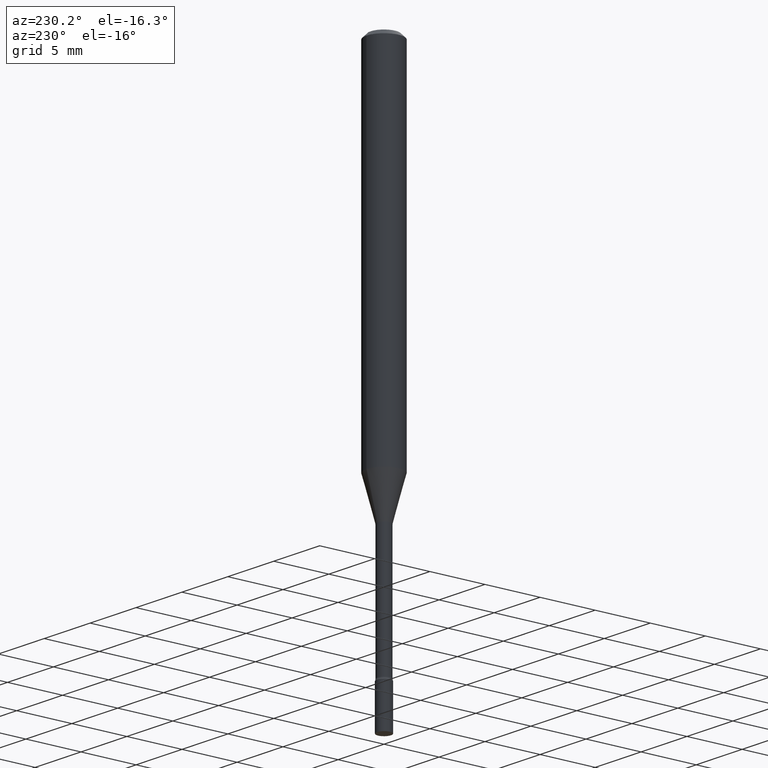
[diagram: clean part render]
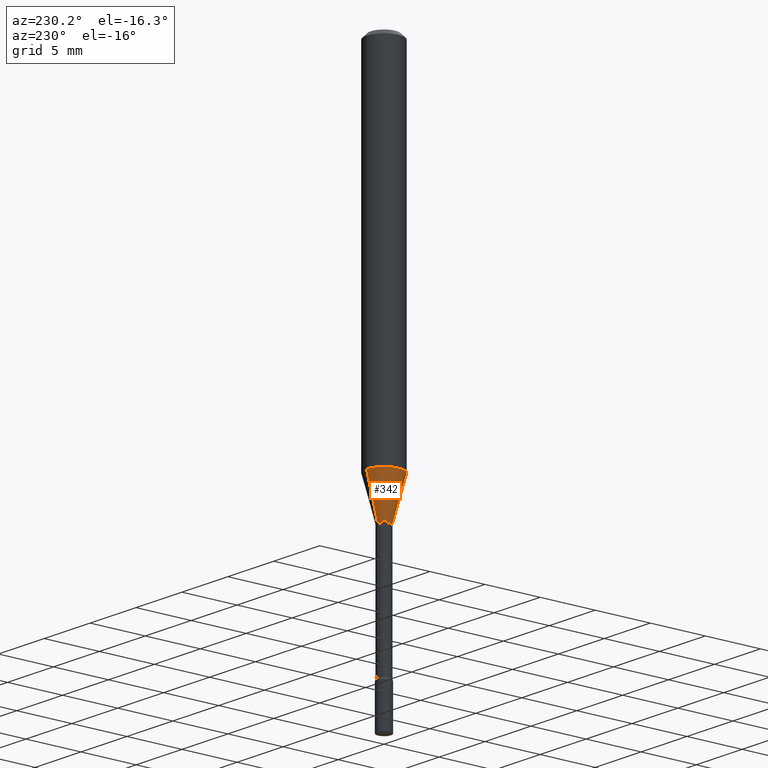
[diagram: same view with one face highlighted and labeled with its STEP entity id]
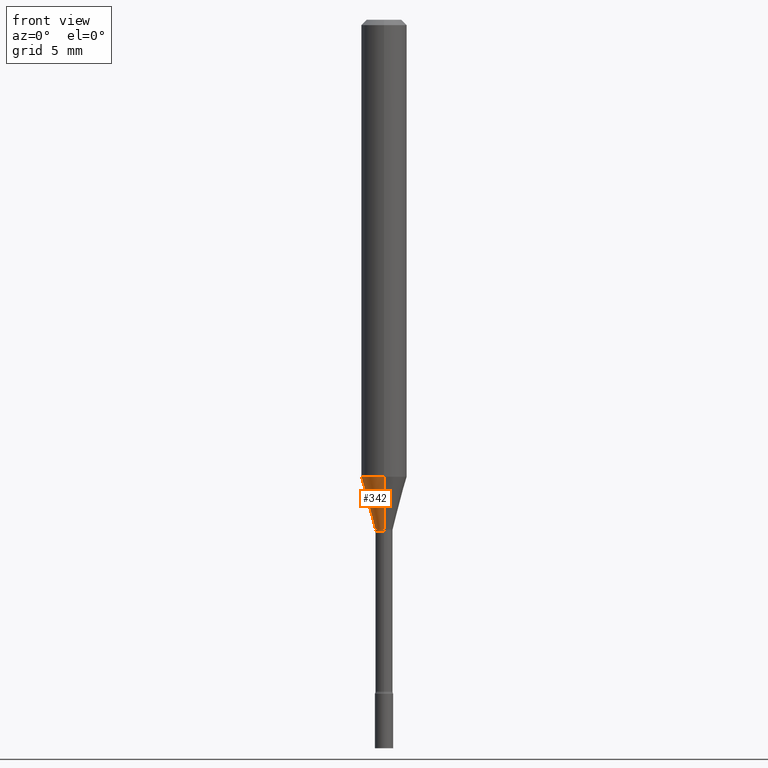
[diagram: same view with one face highlighted and labeled with its STEP entity id]
A machine part, auxiliary view. The second image highlights one B-rep face of the part: STEP entity #342.
A second angle (front view) of the same face is appended — the face is thin or edge-on in the first view.
In plain terms, the highlighted conical surface has half-angle 15 deg.
Its self-contained STEP definition (entity closure, byte-faithful):
#3 = AXIS2_PLACEMENT_3D ( 'NONE', #188, #15, #303 ) ;
#15 = DIRECTION ( 'NONE',  ( -2.445460790589413958E-29, 3.491492817632439636E-15, 1.000000000000000000 ) ) ;
#20 = VECTOR ( 'NONE', #201, 39.37007874015748143 ) ;
#23 = CARTESIAN_POINT ( 'NONE',  ( 1.706092163947572763E-16, 0.02401111260565909691, -1.398092501787273179 ) ) ;
#32 = EDGE_CURVE ( 'NONE', #122, #233, #482, .T. ) ;
#64 = VECTOR ( 'NONE', #284, 39.37007874015748143 ) ;
#70 = CARTESIAN_POINT ( 'NONE',  ( 3.418980394737836863E-29, -4.881429928376032930E-15, -1.398092501787273179 ) ) ;
#79 = DIRECTION ( 'NONE',  ( -6.982962677686265133E-15, -1.000000000000000000, 0.000000000000000000 ) ) ;
#85 = CARTESIAN_POINT ( 'NONE',  ( 3.418980394737836863E-29, -4.881429928376032930E-15, -1.398092501787273179 ) ) ;
#87 = ORIENTED_EDGE ( 'NONE', *, *, #135, .T. ) ;
#102 = LINE ( 'NONE', #274, #20 ) ;
#111 = EDGE_CURVE ( 'NONE', #515, #122, #112, .T. ) ;
#112 = LINE ( 'NONE', #23, #64 ) ;
#122 = VERTEX_POINT ( 'NONE', #283 ) ;
#124 = ORIENTED_EDGE ( 'NONE', *, *, #195, .T. ) ;
#134 = EDGE_LOOP ( 'NONE', ( #492, #87, #124, #260 ) ) ;
#135 = EDGE_CURVE ( 'NONE', #515, #419, #240, .T. ) ;
#144 = CONICAL_SURFACE ( 'NONE', #372, 0.02401111260566398189, 0.2617993877991502960 ) ;
#176 = CARTESIAN_POINT ( 'NONE',  ( -1.676687031750395996E-16, -0.02401111260566886341, -1.398092501787273179 ) ) ;
#188 = CARTESIAN_POINT ( 'NONE',  ( 3.067708334007688547E-29, -4.379903229688440417E-15, -1.254450018504814413 ) ) ;
#195 = EDGE_CURVE ( 'NONE', #419, #233, #102, .T. ) ;
#197 = AXIS2_PLACEMENT_3D ( 'NONE', #70, #504, #393 ) ;
#201 = DIRECTION ( 'NONE',  ( -1.807323732225330928E-15, -0.2588190451025182970, 0.9659258262890689783 ) ) ;
#210 = DIRECTION ( 'NONE',  ( -2.445460790589413958E-29, 3.491492817632439636E-15, 1.000000000000000000 ) ) ;
#233 = VERTEX_POINT ( 'NONE', #399 ) ;
#240 = CIRCLE ( 'NONE', #197, 0.02401111260566398189 ) ;
#260 = ORIENTED_EDGE ( 'NONE', *, *, #32, .F. ) ;
#274 = CARTESIAN_POINT ( 'NONE',  ( -1.676687031750395996E-16, -0.02401111260566886341, -1.398092501787273179 ) ) ;
#283 = CARTESIAN_POINT ( 'NONE',  ( 4.440892098500930859E-16, 0.06249999999999559380, -1.254450018504814635 ) ) ;
#284 = DIRECTION ( 'NONE',  ( 1.839019923739601104E-15, 0.2588190451025250693, 0.9659258262890670910 ) ) ;
#289 = FACE_OUTER_BOUND ( 'NONE', #134, .T. ) ;
#303 = DIRECTION ( 'NONE',  ( -6.982962677686265922E-15, -1.000000000000000000, 4.370956789862821150E-15 ) ) ;
#342 = ADVANCED_FACE ( 'NONE', ( #289 ), #144, .T. ) ;
#372 = AXIS2_PLACEMENT_3D ( 'NONE', #85, #210, #79 ) ;
#393 = DIRECTION ( 'NONE',  ( -6.982962677686265133E-15, -1.000000000000000000, 0.000000000000000000 ) ) ;
#399 = CARTESIAN_POINT ( 'NONE',  ( -4.364351673553610517E-16, -0.06250000000000439926, -1.254450018504814190 ) ) ;
#419 = VERTEX_POINT ( 'NONE', #176 ) ;
#482 = CIRCLE ( 'NONE', #3, 0.06250000000000000000 ) ;
#492 = ORIENTED_EDGE ( 'NONE', *, *, #111, .F. ) ;
#493 = CARTESIAN_POINT ( 'NONE',  ( 3.073492131224253537E-16, 0.02401111260565909691, -1.398092501787273179 ) ) ;
#504 = DIRECTION ( 'NONE',  ( -2.445460790589413958E-29, 3.491492817632439636E-15, 1.000000000000000000 ) ) ;
#515 = VERTEX_POINT ( 'NONE', #493 ) ;